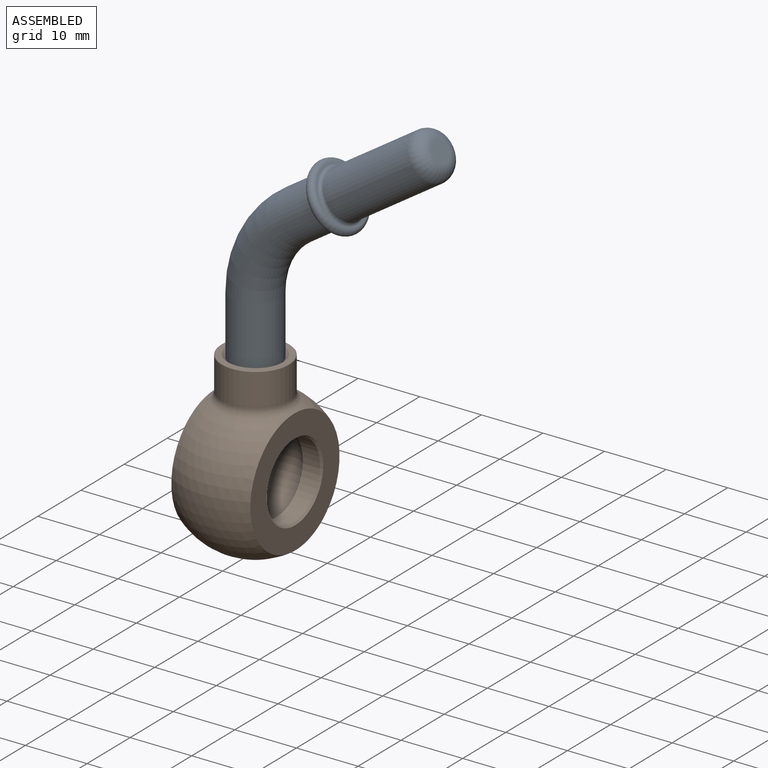
[diagram: assembled view]
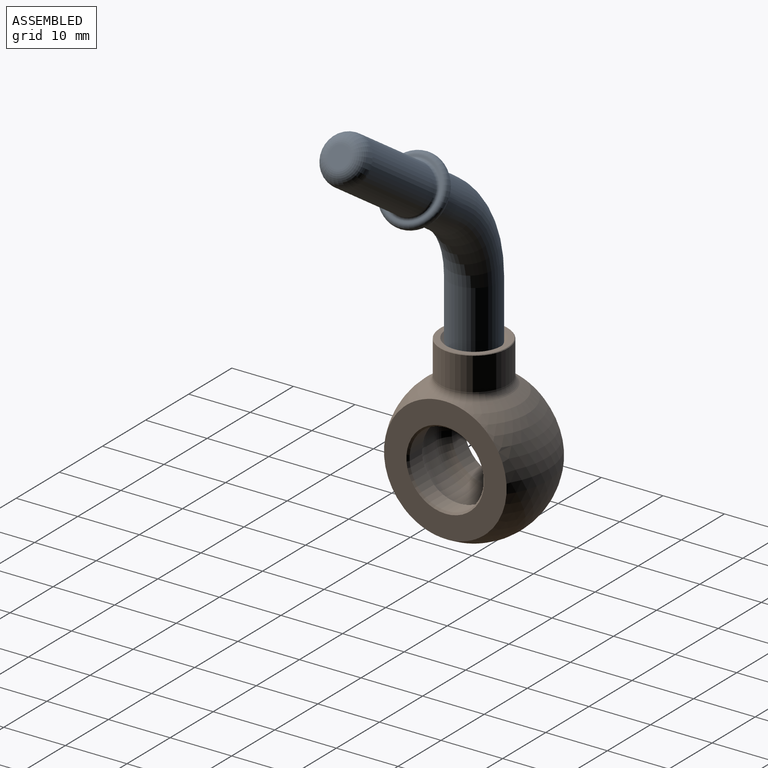
[diagram: assembled view, second angle]
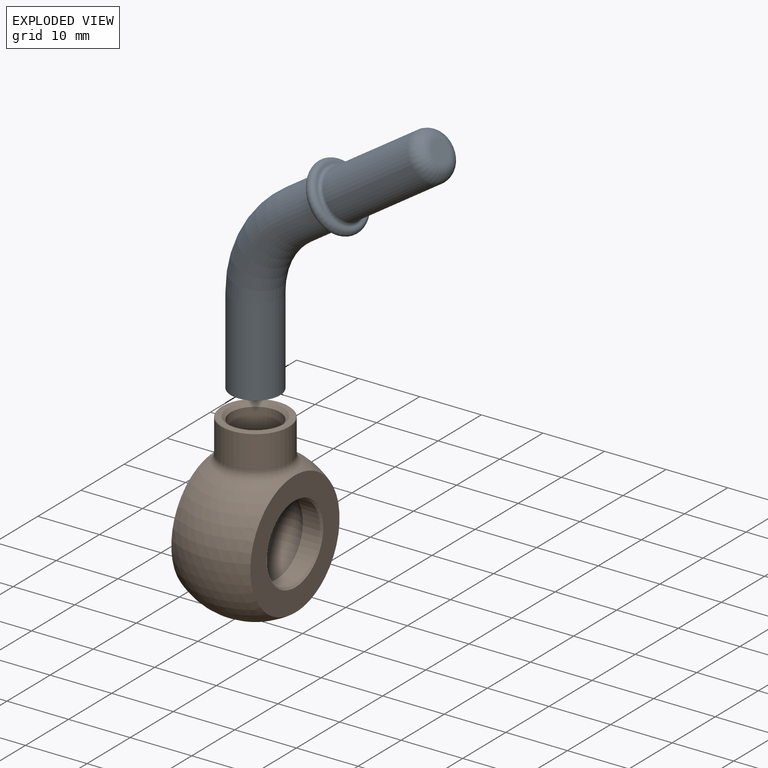
[diagram: exploded view]
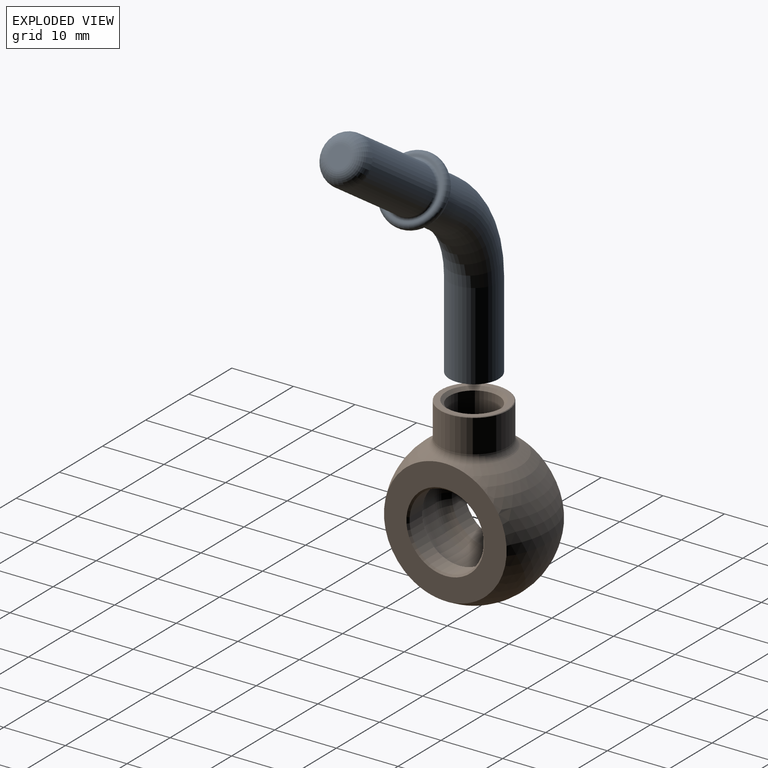
[diagram: exploded view, second angle]
ASSEMBLY  parts=2 mates=2
PART A: 12 faces, bbox 11.9x38.3x45.5 mm
  f0: cylinder r=4mm len=10.18mm, axis (0,0.83,0.55), area 159.9mm2, adj f3,f10
  f1: plane 8x8mm, normal (0,0,-1), area 50.3mm2, adj f2
  f2: cylinder r=4mm len=14.13mm, axis (0,0,1), area 355.2mm2, adj f1,f3
  f3: torus R=16mm, axis (-1,0,0), area 395.3mm2, adj f0,f2
  f4: plane 9.38x7.81mm, normal (0,-0.83,-0.55), area 2.6mm2, adj f9,f10
  f5: plane 9.38x7.81mm, normal (0,0.83,0.55), area 7mm2, adj f8,f9
  f6: cylinder r=3.94mm len=18.37mm, axis (0,0.83,0.55), area 416.9mm2, adj f8,f11
  f7: plane 3.49x2.9mm, normal (0,0.83,0.55), area 9.6mm2, adj f11
  f8: torus R=4.45mm, axis (0,0.83,0.55), area 20.4mm2, adj f5,f6
  f9: torus R=4.69mm, axis (0,-0.83,-0.55), area 82.1mm2, adj f4,f5
  f10: torus R=4.6mm, axis (0,-0.83,-0.55), area 25mm2, adj f0,f4
  f11: torus R=1.75mm, axis (0,0.83,0.55), area 68.3mm2, adj f6,f7
PART B: 19 faces, bbox 24x24x29 mm
  f0: cylinder r=6.1mm len=12.2mm, axis (1,0,0), area 108.8mm2, adj f12,f16
  f1: cylinder r=6.1mm len=12.2mm, axis (1,0,0), area 108.8mm2, adj f14,f15
  f2: cylinder r=2.5mm len=5mm, axis (0,0,1), area 64.8mm2, adj f11,f12,f13,f14
  f3: sphere r=12mm, area 849mm2, adj f6,f7,f8
  f4: cylinder r=5.5mm len=11mm, axis (0,0,1), area 185.1mm2, adj f8,f18
  f5: plane 10.8x10.8mm, normal (0,0,1), area 28mm2, adj f17,f18
  f6: plane 20.17x20.17mm, normal (-1,0,0), area 191mm2, adj f3,f16
  f7: plane 20.17x20.17mm, normal (1,0,0), area 191mm2, adj f3,f15
  f8: torus R=7mm, axis (0,0,-1), area 55.6mm2, adj f3,f4
  f9: cylinder r=4mm len=8mm, axis (0,0,1), area 113.1mm2, adj f10,f17
  f10: plane 8x8mm, normal (0,0,1), area 11.8mm2, adj f9,f11
  f11: cone r=2.5mm half-angle=45deg, axis (0,0,1), area 26.7mm2, adj f2,f10
  f12: torus R=4.25mm, axis (1,0,0), area 111.9mm2, adj f0,f2,f13
  f13: cylinder r=7.25mm len=14.5mm, axis (1,0,0), area 81.2mm2, adj f2,f12,f14
  f14: torus R=4.25mm, axis (1,0,0), area 111.9mm2, adj f1,f2,f13
  f15: cone r=6.1mm half-angle=45deg, axis (1,0,0), area 16.7mm2, adj f1,f7
  f16: cone r=6.4mm half-angle=45deg, axis (-1,0,0), area 16.7mm2, adj f0,f6
  f17: cone r=4mm half-angle=45deg, axis (0,0,1), area 18.9mm2, adj f5,f9
  f18: cone r=5.4mm half-angle=45deg, axis (0,0,-1), area 4.8mm2, adj f4,f5
PLACE A rot(axis=(0,0,-1),91deg) t=(12.81,49.32,-60.15)mm
PLACE B rot(axis=(0,0,-1),1deg) t=(12.81,49.32,-72.15)mm
MATE fastened A.f2 <-> B.f4  axis (0,0,-1) through (12.81,49.32,-60.15)mm
MATE cylindrical A.f2 <-> B.f4  axis (0,0,1) through (12.81,49.32,-53.08)mm
